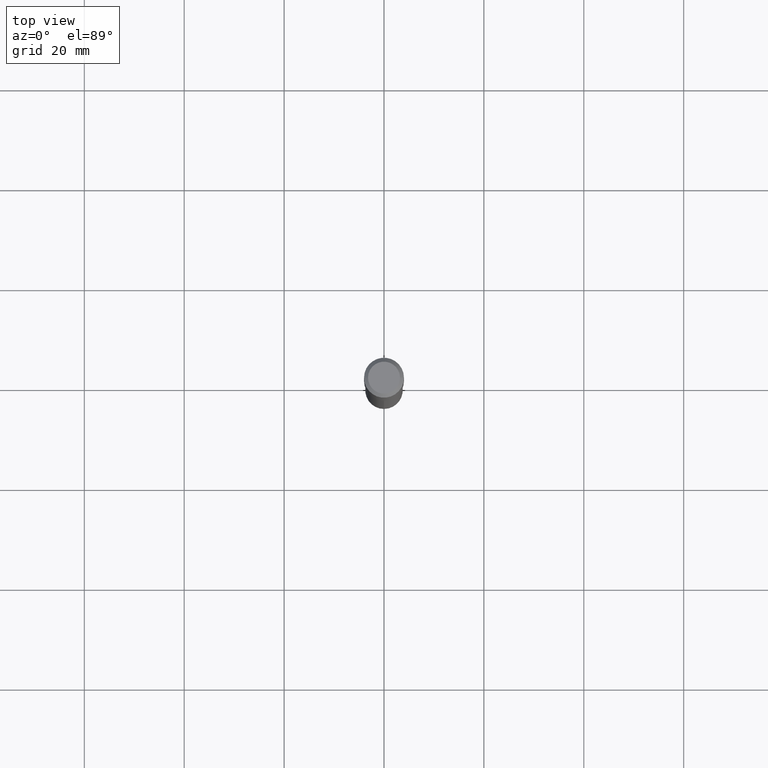
[diagram: clean part render]
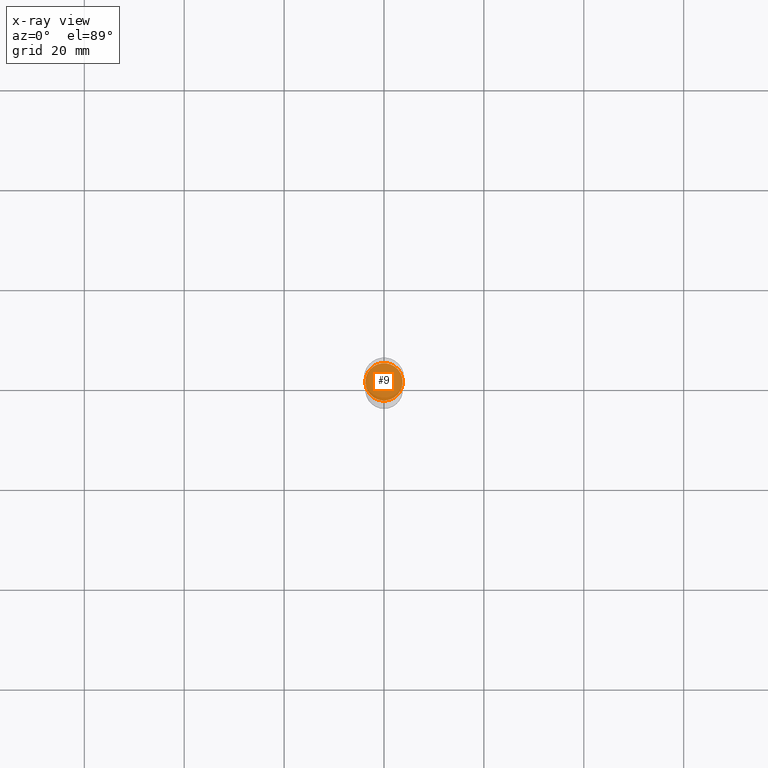
[diagram: x-ray — body ghosted, one internal face saturated and labeled with its STEP entity id]
A machine part, top view, then the same camera in x-ray: the body is ghosted and one INTERNAL B-rep face — a face not visible from any outside direction — is saturated and labeled: STEP entity #9.
In plain terms, the highlighted planar face has unit normal (-0, 0, 1).
Its self-contained STEP definition (entity closure, byte-faithful):
#9 = ADVANCED_FACE ( 'NONE', ( #127 ), #169, .F. ) ;
#22 = AXIS2_PLACEMENT_3D ( 'NONE', #270, #267, #424 ) ;
#31 = DIRECTION ( 'NONE',  ( -2.445468806185136597E-29, 3.491481338843145583E-15, 1.000000000000000000 ) ) ;
#127 = FACE_OUTER_BOUND ( 'NONE', #301, .T. ) ;
#143 = CARTESIAN_POINT ( 'NONE',  ( 4.741764015192979440E-29, -6.769982316016858264E-15, -1.938999999999999835 ) ) ;
#169 = PLANE ( 'NONE',  #22 ) ;
#174 = CARTESIAN_POINT ( 'NONE',  ( 0.1471500000000000030, -7.797525274038393129E-15, -1.938999999999999835 ) ) ;
#180 = AXIS2_PLACEMENT_3D ( 'NONE', #143, #351, #278 ) ;
#187 = CARTESIAN_POINT ( 'NONE',  ( -0.1471500000000000030, -5.721769453171760406E-15, -1.938999999999999835 ) ) ;
#202 = CIRCLE ( 'NONE', #180, 0.1471500000000000030 ) ;
#262 = VERTEX_POINT ( 'NONE', #187 ) ;
#267 = DIRECTION ( 'NONE',  ( -2.438088387897960049E-29, 3.491481338843145188E-15, 1.000000000000000000 ) ) ;
#270 = CARTESIAN_POINT ( 'NONE',  ( 4.741764015192979440E-29, -6.769982316016858264E-15, -1.938999999999999835 ) ) ;
#272 = ORIENTED_EDGE ( 'NONE', *, *, #386, .F. ) ;
#278 = DIRECTION ( 'NONE',  ( 1.000000000000000000, -6.982962677686267499E-15, 0.000000000000000000 ) ) ;
#293 = EDGE_CURVE ( 'NONE', #473, #262, #405, .T. ) ;
#301 = EDGE_LOOP ( 'NONE', ( #377, #272 ) ) ;
#308 = DIRECTION ( 'NONE',  ( 1.000000000000000000, -6.982962677686267499E-15, 0.000000000000000000 ) ) ;
#351 = DIRECTION ( 'NONE',  ( -2.445468806185136597E-29, 3.491481338843145583E-15, 1.000000000000000000 ) ) ;
#377 = ORIENTED_EDGE ( 'NONE', *, *, #293, .F. ) ;
#386 = EDGE_CURVE ( 'NONE', #262, #473, #202, .T. ) ;
#391 = AXIS2_PLACEMENT_3D ( 'NONE', #463, #31, #308 ) ;
#405 = CIRCLE ( 'NONE', #391, 0.1471500000000000030 ) ;
#424 = DIRECTION ( 'NONE',  ( 1.000000000000000000, -6.982962677686265922E-15, 4.876176775795935793E-29 ) ) ;
#463 = CARTESIAN_POINT ( 'NONE',  ( 4.741764015192979440E-29, -6.769982316016858264E-15, -1.938999999999999835 ) ) ;
#473 = VERTEX_POINT ( 'NONE', #174 ) ;